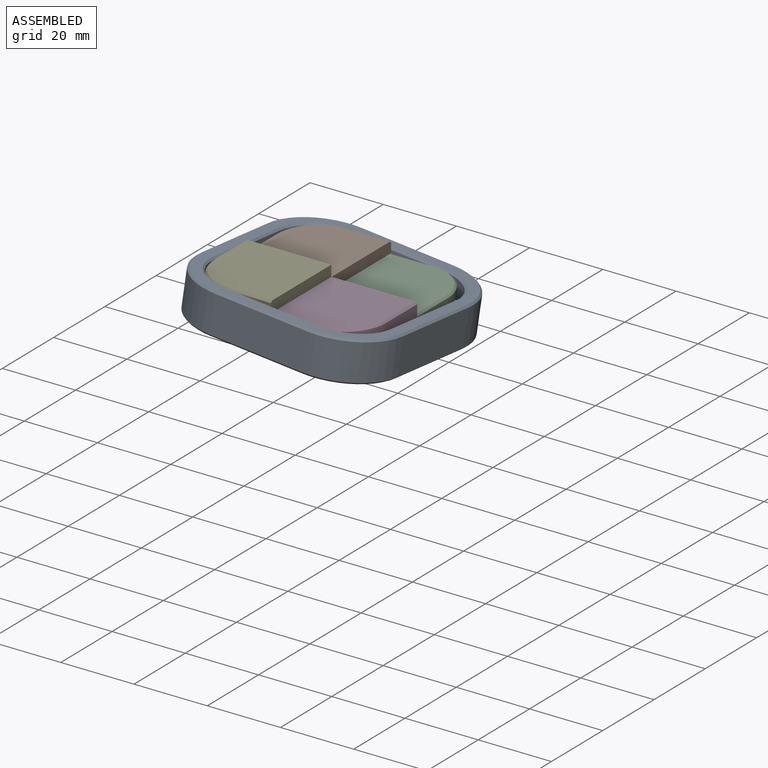
[diagram: assembled view]
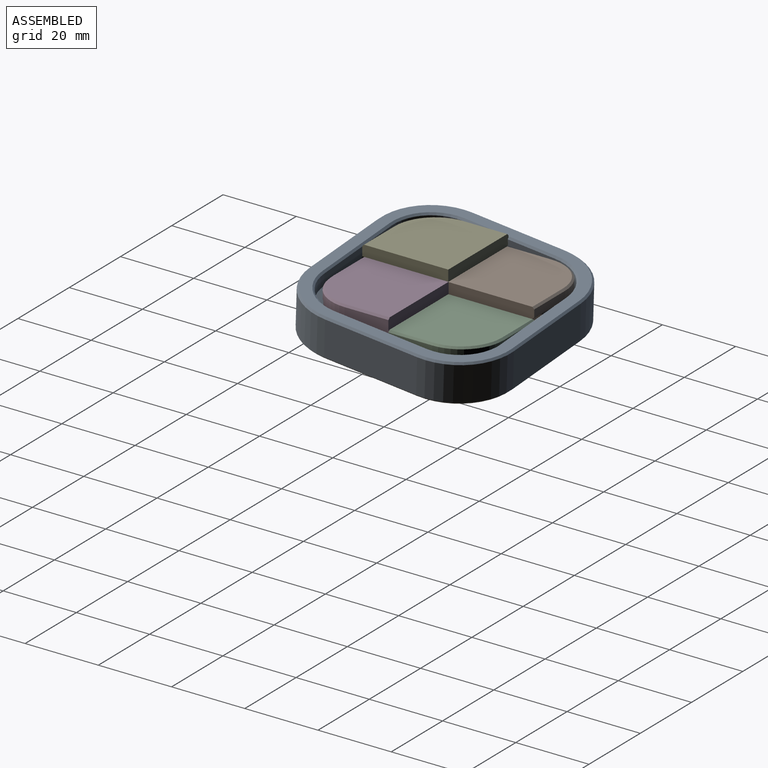
[diagram: assembled view, second angle]
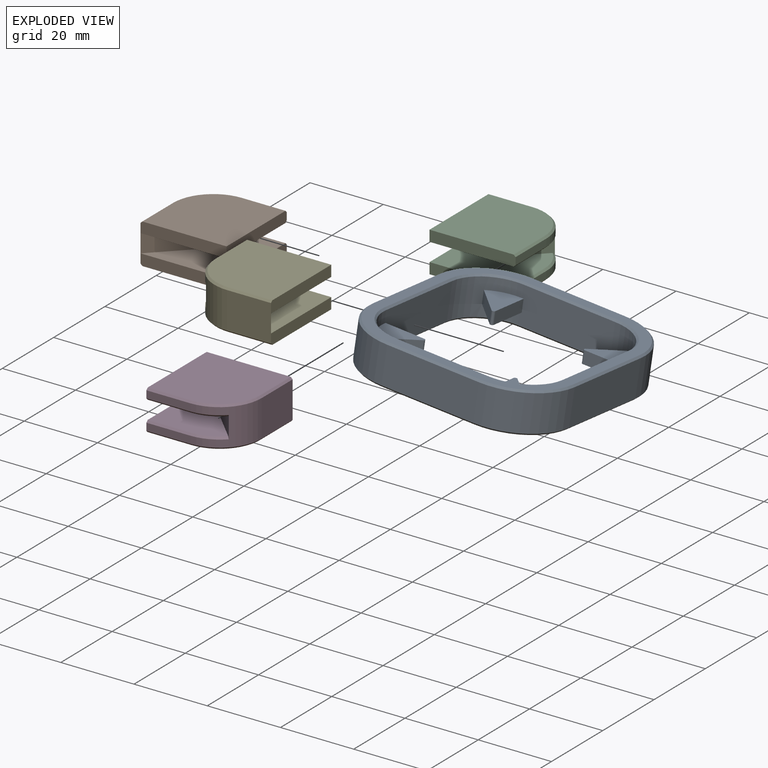
[diagram: exploded view]
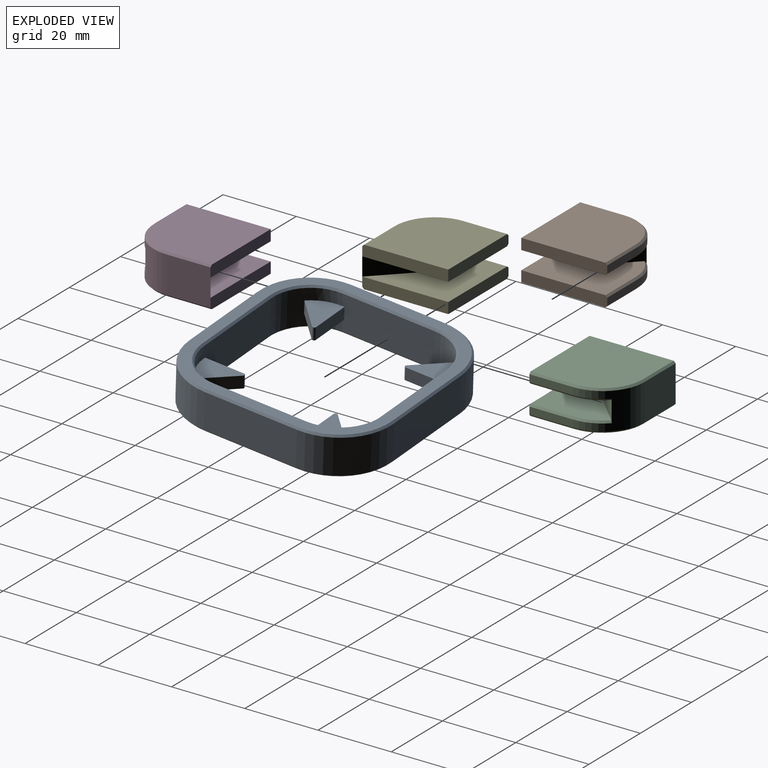
[diagram: exploded view, second angle]
ASSEMBLY  parts=5 mates=9
PART A: 70 faces, bbox 56.5x56.5x11 mm
  f0: plane 25.5x10mm, normal (-1,0,0), area 253.3mm2, adj f10,f11,f27,f28,f29,f34,f42
  f1: plane 25.5x10mm, normal (1,0,0), area 253.3mm2, adj f12,f13,f23,f24,f25,f41,f49
  f2: plane 25.5x10mm, normal (0,1,0), area 253.3mm2, adj f11,f12,f19,f20,f21,f38,f46
  f3: plane 25.5x10mm, normal (0,-1,0), area 253.3mm2, adj f10,f13,f15,f16,f17,f37,f45
  f4: plane 25.5x10mm, normal (-1,0,0), area 255mm2, adj f30,f33,f53,f61
  f5: plane 25.5x10mm, normal (0,-1,0), area 255mm2, adj f30,f31,f57,f65
  f6: plane 25.5x10mm, normal (1,0,0), area 255mm2, adj f31,f32,f54,f62
  f7: plane 25.5x10mm, normal (0,1,0), area 255mm2, adj f32,f33,f50,f58
  f8: plane 55.5x55.5mm, normal (0,0,1), area 560.5mm2, adj f42,f43,f44,f45,f46,f47,f48,f49
  f9: plane 55.5x55.5mm, normal (0,0,-1), area 560.5mm2, adj f34,f35,f36,f37,f38,f39,f40,f41
  f10: cylinder r=11.5mm len=11.5mm, axis (0,0,1), area 149.9mm2, adj f0,f3,f26,f27,f28,f35,f43
  f11: cylinder r=11.5mm len=11.5mm, axis (0,0,-1), area 149.9mm2, adj f0,f2,f18,f19,f20,f36,f44
  f12: cylinder r=11.5mm len=11.5mm, axis (0,0,1), area 149.9mm2, adj f1,f2,f22,f23,f24,f40,f48
  f13: cylinder r=11.5mm len=11.5mm, axis (0,0,-1), area 149.9mm2, adj f1,f3,f14,f15,f16,f39,f47
  f14: plane 7.78x7.78mm, normal (-0.71,-0.71,0), area 37.4mm2, adj f13,f15,f16,f69
  f15: plane 11.29x8.63mm, normal (0,0,1), area 57.5mm2, adj f3,f13,f14,f17,f69
  f16: plane 11.29x8.63mm, normal (0,0,-1), area 57.5mm2, adj f3,f13,f14,f17,f69
  f17: plane 10.79x3.4mm, normal (1,0,0), area 36.7mm2, adj f3,f15,f16,f69
  f18: plane 7.78x7.78mm, normal (0.71,0.71,0), area 37.4mm2, adj f11,f19,f20,f67
  f19: plane 11.29x8.63mm, normal (0,0,1), area 57.5mm2, adj f2,f11,f18,f21,f67
  f20: plane 11.29x8.63mm, normal (0,0,-1), area 57.5mm2, adj f2,f11,f18,f21,f67
  f21: plane 10.79x3.4mm, normal (-1,0,0), area 36.7mm2, adj f2,f19,f20,f67
  f22: plane 7.78x7.78mm, normal (0.71,-0.71,0), area 37.4mm2, adj f12,f23,f24,f68
  f23: plane 11.29x8.63mm, normal (0,0,1), area 57.5mm2, adj f1,f12,f22,f25,f68
  f24: plane 11.29x8.63mm, normal (0,0,-1), area 57.5mm2, adj f1,f12,f22,f25,f68
  f25: plane 10.79x3.4mm, normal (0,1,0), area 36.7mm2, adj f1,f23,f24,f68
  f26: plane 7.78x7.78mm, normal (-0.71,0.71,0), area 37.4mm2, adj f10,f27,f28,f66
  f27: plane 11.29x8.63mm, normal (0,0,1), area 57.5mm2, adj f0,f10,f26,f29,f66
  f28: plane 11.29x8.63mm, normal (0,0,-1), area 57.5mm2, adj f0,f10,f26,f29,f66
  f29: plane 10.79x3.4mm, normal (0,-1,0), area 36.7mm2, adj f0,f27,f28,f66
  f30: cylinder r=15.5mm len=15.5mm, axis (0,0,-1), area 243.5mm2, adj f4,f5,f55,f63
  f31: cylinder r=15.5mm len=15.5mm, axis (0,0,1), area 243.5mm2, adj f5,f6,f56,f64
  f32: cylinder r=15.5mm len=15.5mm, axis (0,0,-1), area 243.5mm2, adj f6,f7,f52,f60
  f33: cylinder r=15.5mm len=15.5mm, axis (0,0,1), area 243.5mm2, adj f4,f7,f51,f59
  f34: plane 25.5x0.5mm, normal (-0.71,0,-0.71), area 18mm2, adj f0,f9,f35,f36
  f35: cone r=12mm half-angle=45deg, axis (0,0,-1), area 13.1mm2, adj f9,f10,f34,f37
  f36: cone r=12mm half-angle=45deg, axis (0,0,-1), area 13.1mm2, adj f9,f11,f34,f38
  f37: plane 25.5x0.5mm, normal (0,-0.71,-0.71), area 18mm2, adj f3,f9,f35,f39
  f38: plane 25.5x0.5mm, normal (0,0.71,-0.71), area 18mm2, adj f2,f9,f36,f40
  f39: cone r=12mm half-angle=45deg, axis (0,0,-1), area 13.1mm2, adj f9,f13,f37,f41
  f40: cone r=12mm half-angle=45deg, axis (0,0,-1), area 13.1mm2, adj f9,f12,f38,f41
  f41: plane 25.5x0.5mm, normal (0.71,0,-0.71), area 18mm2, adj f1,f9,f39,f40
  f42: plane 25.5x0.5mm, normal (-0.71,0,0.71), area 18mm2, adj f0,f8,f43,f44
  f43: cone r=12mm half-angle=45deg, axis (0,0,1), area 13.1mm2, adj f8,f10,f42,f45
  f44: cone r=12mm half-angle=45deg, axis (0,0,1), area 13.1mm2, adj f8,f11,f42,f46
  f45: plane 25.5x0.5mm, normal (0,-0.71,0.71), area 18mm2, adj f3,f8,f43,f47
  f46: plane 25.5x0.5mm, normal (0,0.71,0.71), area 18mm2, adj f2,f8,f44,f48
  f47: cone r=12mm half-angle=45deg, axis (0,0,1), area 13.1mm2, adj f8,f13,f45,f49
  f48: cone r=12mm half-angle=45deg, axis (0,0,1), area 13.1mm2, adj f8,f12,f46,f49
  f49: plane 25.5x0.5mm, normal (0.71,0,0.71), area 18mm2, adj f1,f8,f47,f48
  f50: plane 25.5x0.5mm, normal (0,0.71,-0.71), area 18mm2, adj f7,f9,f51,f52
  f51: cone r=15mm half-angle=45deg, axis (0,0,1), area 16.9mm2, adj f9,f33,f50,f53
  f52: cone r=15mm half-angle=45deg, axis (0,0,1), area 16.9mm2, adj f9,f32,f50,f54
  f53: plane 25.5x0.5mm, normal (-0.71,0,-0.71), area 18mm2, adj f4,f9,f51,f55
  f54: plane 25.5x0.5mm, normal (0.71,0,-0.71), area 18mm2, adj f6,f9,f52,f56
  f55: cone r=15mm half-angle=45deg, axis (0,0,1), area 16.9mm2, adj f9,f30,f53,f57
  f56: cone r=15mm half-angle=45deg, axis (0,0,1), area 16.9mm2, adj f9,f31,f54,f57
  f57: plane 25.5x0.5mm, normal (0,-0.71,-0.71), area 18mm2, adj f5,f9,f55,f56
  f58: plane 25.5x0.5mm, normal (0,0.71,0.71), area 18mm2, adj f7,f8,f59,f60
  f59: cone r=15mm half-angle=45deg, axis (0,0,-1), area 16.9mm2, adj f8,f33,f58,f61
  f60: cone r=15mm half-angle=45deg, axis (0,0,-1), area 16.9mm2, adj f8,f32,f58,f62
  f61: plane 25.5x0.5mm, normal (-0.71,0,0.71), area 18mm2, adj f4,f8,f59,f63
  f62: plane 25.5x0.5mm, normal (0.71,0,0.71), area 18mm2, adj f6,f8,f60,f64
  f63: cone r=15mm half-angle=45deg, axis (0,0,-1), area 16.9mm2, adj f8,f30,f61,f65
  f64: cone r=15mm half-angle=45deg, axis (0,0,-1), area 16.9mm2, adj f8,f31,f62,f65
  f65: plane 25.5x0.5mm, normal (0,-0.71,0.71), area 18mm2, adj f5,f8,f63,f64
  f66: cylinder r=0.5mm len=3.4mm, axis (0,0,1), area 4mm2, adj f26,f27,f28,f29
  f67: cylinder r=0.5mm len=3.4mm, axis (0,0,1), area 4mm2, adj f18,f19,f20,f21
  f68: cylinder r=0.5mm len=3.4mm, axis (0,0,1), area 4mm2, adj f22,f23,f24,f25
  f69: cylinder r=0.5mm len=3.4mm, axis (0,0,1), area 4mm2, adj f14,f15,f16,f17
PART B: 24 faces, bbox 23.5x23.5x11 mm
  f0: plane 12x10mm, normal (0,-1,0), area 120mm2, adj f1,f6,f8,f13,f16,f19
  f1: plane 23.5x3mm, normal (1,0,0), area 70.4mm2, adj f0,f2,f4,f5,f19
  f2: plane 23.5x3mm, normal (0,1,0), area 70.2mm2, adj f1,f3,f4,f5,f17,f22
  f3: plane 12x2mm, normal (-1,0,0), area 24mm2, adj f2,f13,f17,f22
  f4: plane 23x23mm, normal (0,0,1), area 503mm2, adj f1,f2,f17,f18,f19
  f5: plane 23.5x23mm, normal (0,0,-1), area 389.6mm2, adj f1,f2,f6,f7,f22,f23
  f6: plane 11.75x11.75mm, normal (0.71,0.71,0), area 83.1mm2, adj f0,f5,f7,f12
  f7: plane 8.38x8.38mm, normal (-0.71,0.71,0), area 59.5mm2, adj f5,f6,f12,f13,f21,f23
  f8: plane 23.5x3mm, normal (1,0,0), area 70.4mm2, adj f0,f9,f11,f12,f16
  f9: plane 23.5x3mm, normal (0,1,0), area 70.2mm2, adj f8,f10,f11,f12,f14,f20
  f10: plane 12x2mm, normal (-1,0,0), area 24mm2, adj f9,f13,f14,f20
  f11: plane 23x23mm, normal (0,0,-1), area 503mm2, adj f8,f9,f14,f15,f16
  f12: plane 23.5x23mm, normal (0,0,1), area 389.6mm2, adj f6,f7,f8,f9,f20,f21
  f13: cylinder r=11.5mm len=11.5mm, axis (0,0,-1), area 126.4mm2, adj f0,f3,f7,f10,f15,f18,f21,f23
  f14: plane 12x0.5mm, normal (-0.71,0,-0.71), area 8.5mm2, adj f9,f10,f11,f15
  f15: cone r=11mm half-angle=45deg, axis (0,0,1), area 12.5mm2, adj f11,f13,f14,f16
  f16: plane 12x0.5mm, normal (0,-0.71,-0.71), area 8.5mm2, adj f0,f8,f11,f15
  f17: plane 12x0.5mm, normal (-0.71,0,0.71), area 8.5mm2, adj f2,f3,f4,f18
  f18: cone r=11mm half-angle=45deg, axis (0,0,-1), area 12.5mm2, adj f4,f13,f17,f19
  f19: plane 12x0.5mm, normal (0,-0.71,0.71), area 8.5mm2, adj f0,f1,f4,f18
  f20: plane 12x0.5mm, normal (-0.71,0,0.71), area 8.5mm2, adj f9,f10,f12,f21
  f21: cone r=11mm half-angle=45deg, axis (0,0,-1), area 6.2mm2, adj f7,f12,f13,f20
  f22: plane 12x0.5mm, normal (-0.71,0,-0.71), area 8.5mm2, adj f2,f3,f5,f23
  f23: cone r=11mm half-angle=45deg, axis (0,0,1), area 6.2mm2, adj f5,f7,f13,f22
PART C: same geometry as B
PART D: same geometry as B
PART E: same geometry as B
PLACE A rot(axis=(-0.72,0.68,-0.13),7.5deg) t=(-11.71,2.45,6.39)mm
PLACE B rot(axis=(0,0,-1),90deg) t=(-12.3,26.43,8.82)mm
PLACE C rot(axis=(0,0,-1),180deg) t=(11.13,2.99,5.82)mm
PLACE D rot(axis=(0,0,1),90deg) t=(-12.3,-20.44,8.91)mm
PLACE E t=(-35.73,2.99,11.91)mm fixed
MATE parallel E.f4 <-> D.f4  axis (0,0,1) through (-23.27,-8.04,14.91)mm
MATE parallel C.f0 <-> B.f3  axis (0,1,0) through (-6.37,26.49,3.32)mm
MATE parallel B.f0 <-> E.f3  axis (-1,0,0) through (-35.8,8.93,6.32)mm
MATE planar B.f2 <-> D.f2  axis (1,0,0) through (-12.3,14.63,10.32)mm
MATE planar C.f4 <-> B.f5  axis (0,0,1) through (-1.33,14.03,8.82)mm
MATE parallel D.f3 <-> E.f0  axis (0,-1,0) through (-6.3,-20.44,10.41)mm
MATE parallel B.f4 <-> E.f4  axis (0,0,1) through (-23.33,13.96,11.82)mm
MATE planar D.f4 <-> E.f5  axis (0,0,1) through (-1.27,-7.98,11.91)mm
MATE parallel E.f4 <-> C.f4  axis (0,0,1) through (-23.27,-8.04,14.91)mm
